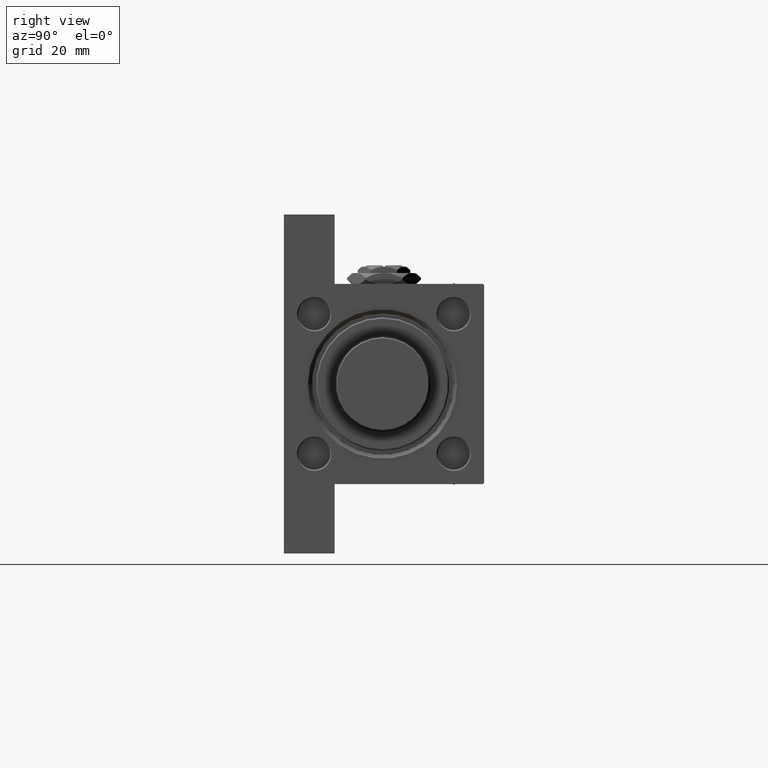
[diagram: clean part render]
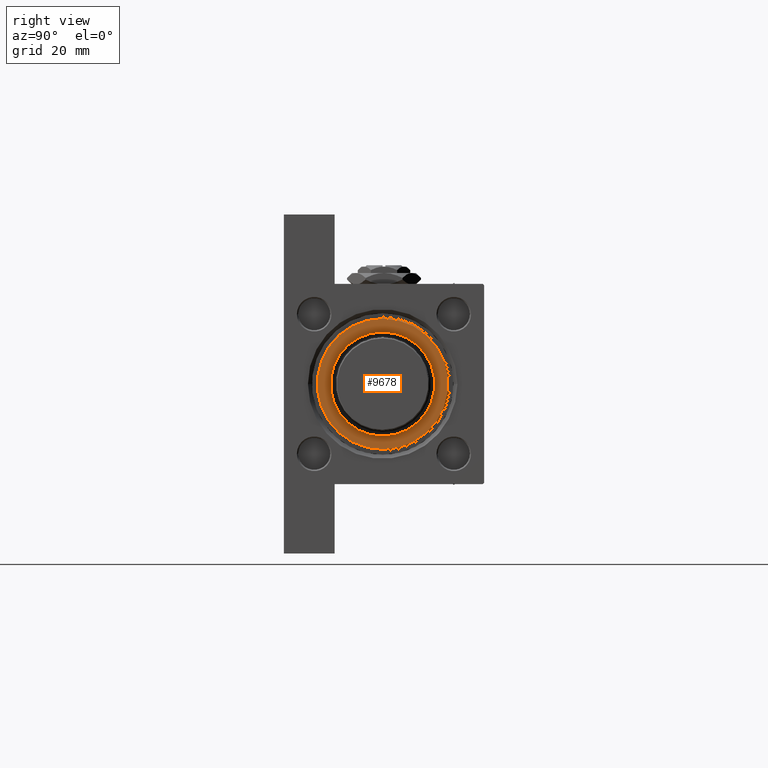
[diagram: same view with one face highlighted and labeled with its STEP entity id]
A machine part, right view. The second image highlights one B-rep face of the part: STEP entity #9678.
In plain terms, the highlighted planar face has unit normal (1, 0, 0).
Its self-contained STEP definition (entity closure, byte-faithful):
#357 = VERTEX_POINT ( 'NONE', #12352 ) ;
#535 = EDGE_LOOP ( 'NONE', ( #44035, #15844 ) ) ;
#796 = VERTEX_POINT ( 'NONE', #18583 ) ;
#1895 = FACE_BOUND ( 'NONE', #535, .T. ) ;
#2895 = DIRECTION ( 'NONE',  ( 0.000000000000000000, 0.000000000000000000, 1.000000000000000000 ) ) ;
#3649 = AXIS2_PLACEMENT_3D ( 'NONE', #16759, #32247, #47689 ) ;
#3793 = DIRECTION ( 'NONE',  ( 1.000000000000000000, 0.000000000000000000, 0.000000000000000000 ) ) ;
#5957 = PLANE ( 'NONE',  #27164 ) ;
#6204 = CARTESIAN_POINT ( 'NONE',  ( 0.000000000000000000, 0.000000000000000000, 37.69999999999999574 ) ) ;
#8826 = ORIENTED_EDGE ( 'NONE', *, *, #15379, .T. ) ;
#9678 = ADVANCED_FACE ( 'NONE', ( #1895, #25255 ), #5957, .T. ) ;
#11773 = CIRCLE ( 'NONE', #3649, 19.50000000000000000 ) ;
#12352 = CARTESIAN_POINT ( 'NONE',  ( -24.50000000000002487, 0.000000000000000000, 37.69999999999999574 ) ) ;
#15379 = EDGE_CURVE ( 'NONE', #357, #796, #27636, .T. ) ;
#15844 = ORIENTED_EDGE ( 'NONE', *, *, #33832, .F. ) ;
#16067 = DIRECTION ( 'NONE',  ( 1.000000000000000000, 0.000000000000000000, 0.000000000000000000 ) ) ;
#16759 = CARTESIAN_POINT ( 'NONE',  ( 0.000000000000000000, 0.000000000000000000, 37.69999999999999574 ) ) ;
#18583 = CARTESIAN_POINT ( 'NONE',  ( 24.50000000000002487, 3.031000827889700833E-15, 37.69999999999999574 ) ) ;
#21696 = DIRECTION ( 'NONE',  ( 0.000000000000000000, 0.000000000000000000, 1.000000000000000000 ) ) ;
#22068 = CARTESIAN_POINT ( 'NONE',  ( -19.50000000000000000, 2.388061258337338939E-15, 37.69999999999999574 ) ) ;
#22101 = EDGE_CURVE ( 'NONE', #796, #357, #24590, .T. ) ;
#24590 = CIRCLE ( 'NONE', #27854, 24.50000000000002487 ) ;
#25255 = FACE_OUTER_BOUND ( 'NONE', #49932, .T. ) ;
#26253 = DIRECTION ( 'NONE',  ( 1.000000000000000000, 0.000000000000000000, -0.000000000000000000 ) ) ;
#26508 = DIRECTION ( 'NONE',  ( 1.000000000000000000, 0.000000000000000000, 0.000000000000000000 ) ) ;
#27164 = AXIS2_PLACEMENT_3D ( 'NONE', #6204, #21696, #26253 ) ;
#27613 = CIRCLE ( 'NONE', #29229, 19.50000000000000000 ) ;
#27636 = CIRCLE ( 'NONE', #42178, 24.50000000000002487 ) ;
#27854 = AXIS2_PLACEMENT_3D ( 'NONE', #38654, #39159, #16067 ) ;
#29229 = AXIS2_PLACEMENT_3D ( 'NONE', #49330, #2895, #26508 ) ;
#30458 = CARTESIAN_POINT ( 'NONE',  ( 0.000000000000000000, 0.000000000000000000, 37.69999999999999574 ) ) ;
#30968 = DIRECTION ( 'NONE',  ( 0.000000000000000000, 0.000000000000000000, 1.000000000000000000 ) ) ;
#32247 = DIRECTION ( 'NONE',  ( 0.000000000000000000, 0.000000000000000000, 1.000000000000000000 ) ) ;
#33832 = EDGE_CURVE ( 'NONE', #43850, #45517, #11773, .T. ) ;
#34926 = ORIENTED_EDGE ( 'NONE', *, *, #22101, .T. ) ;
#38654 = CARTESIAN_POINT ( 'NONE',  ( 0.000000000000000000, 0.000000000000000000, 37.69999999999999574 ) ) ;
#39159 = DIRECTION ( 'NONE',  ( 0.000000000000000000, 0.000000000000000000, 1.000000000000000000 ) ) ;
#39592 = CARTESIAN_POINT ( 'NONE',  ( 19.50000000000000000, 0.000000000000000000, 37.69999999999999574 ) ) ;
#42178 = AXIS2_PLACEMENT_3D ( 'NONE', #30458, #30968, #3793 ) ;
#43850 = VERTEX_POINT ( 'NONE', #22068 ) ;
#44035 = ORIENTED_EDGE ( 'NONE', *, *, #48701, .F. ) ;
#45517 = VERTEX_POINT ( 'NONE', #39592 ) ;
#47689 = DIRECTION ( 'NONE',  ( 1.000000000000000000, 0.000000000000000000, 0.000000000000000000 ) ) ;
#48701 = EDGE_CURVE ( 'NONE', #45517, #43850, #27613, .T. ) ;
#49330 = CARTESIAN_POINT ( 'NONE',  ( 0.000000000000000000, 0.000000000000000000, 37.69999999999999574 ) ) ;
#49932 = EDGE_LOOP ( 'NONE', ( #8826, #34926 ) ) ;